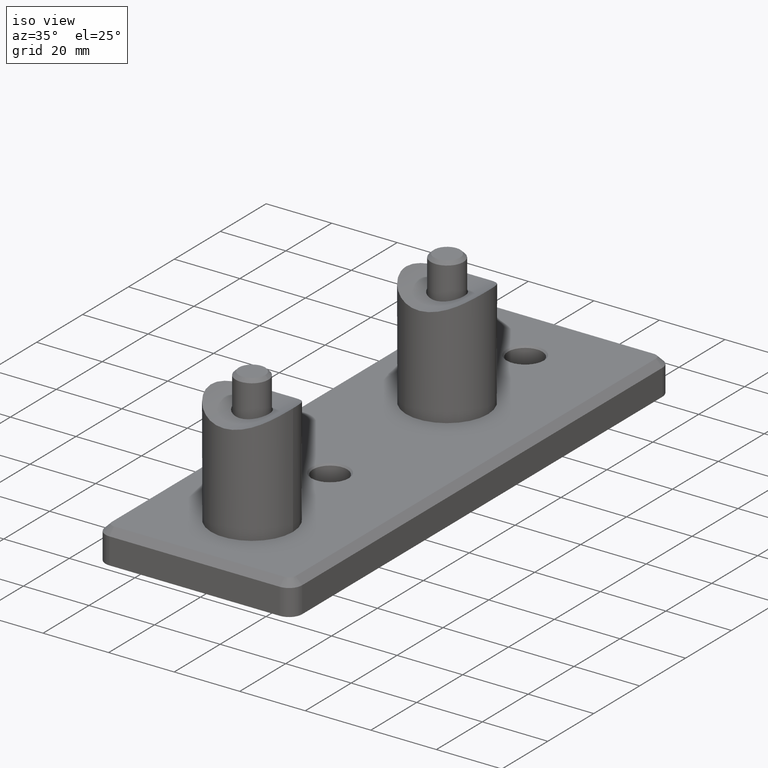
[diagram: clean part render]
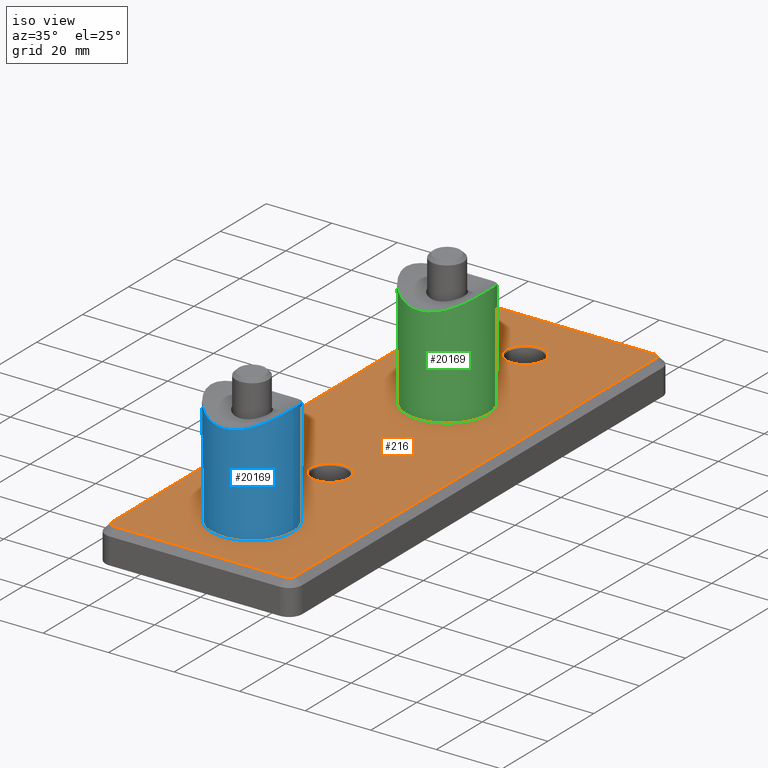
[diagram: same view with three faces highlighted in distinct colors, each labeled with its STEP entity id]
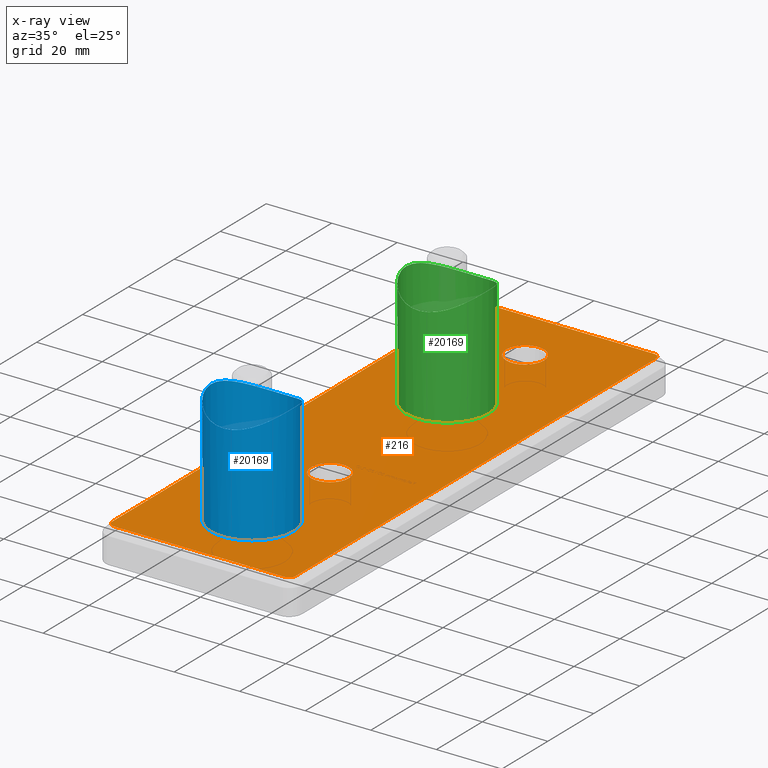
[diagram: x-ray of the same camera — body ghosted, the three highlighted faces saturated]
A machine part, iso view with three faces highlighted in distinct colors.
The next image is the same camera in x-ray (body ghosted, the three faces saturated) — at least one of them is partly hidden behind the body in this view.
Their STEP definitions:

[orange] entity #216 — the highlighted planar face has unit normal (0, 0, 1).
#35 = AXIS2_PLACEMENT_3D ( 'NONE', #19143, #9764, #6501 ) ;
#55 = FACE_OUTER_BOUND ( 'NONE', #11495, .T. ) ;
#126 = CARTESIAN_POINT ( 'NONE',  ( -26.00000000000000000, -80.50000000000001421, 10.00000000000000000 ) ) ;
#137 = EDGE_CURVE ( 'NONE', #20307, #6017, #17592, .T. ) ;
#216 = ADVANCED_FACE ( 'NONE', ( #3515, #8716, #55, #796, #17351 ), #10995, .T. ) ;
#347 = VERTEX_POINT ( 'NONE', #9034 ) ;
#622 = EDGE_CURVE ( 'NONE', #1535, #20307, #2519, .T. ) ;
#796 = FACE_BOUND ( 'NONE', #17856, .T. ) ;
#1049 = ORIENTED_EDGE ( 'NONE', *, *, #622, .T. ) ;
#1126 = CARTESIAN_POINT ( 'NONE',  ( 0.000000000000000000, -57.50000000000001421, 9.999999999999994671 ) ) ;
#1336 = DIRECTION ( 'NONE',  ( -0.000000000000000000, -0.000000000000000000, -1.000000000000000000 ) ) ;
#1353 = EDGE_CURVE ( 'NONE', #6017, #15902, #6211, .T. ) ;
#1535 = VERTEX_POINT ( 'NONE', #13406 ) ;
#1620 = CARTESIAN_POINT ( 'NONE',  ( -26.00000000000000000, 78.50000000000000000, 10.00000000000000000 ) ) ;
#1710 = VECTOR ( 'NONE', #14452, 1000.000000000000000 ) ;
#2519 = CIRCLE ( 'NONE', #19715, 2.000000000000001776 ) ;
#2588 = CARTESIAN_POINT ( 'NONE',  ( 25.99999999999999645, -80.50000000000001421, 10.00000000000000000 ) ) ;
#3067 = EDGE_CURVE ( 'NONE', #15902, #347, #5433, .T. ) ;
#3133 = DIRECTION ( 'NONE',  ( 1.000000000000000000, 0.000000000000000000, 0.000000000000000000 ) ) ;
#3333 = DIRECTION ( 'NONE',  ( -0.000000000000000000, 0.000000000000000000, 1.000000000000000000 ) ) ;
#3334 = DIRECTION ( 'NONE',  ( 0.000000000000000000, -0.000000000000000000, -1.000000000000000000 ) ) ;
#3367 = CARTESIAN_POINT ( 'NONE',  ( -27.99999999999999645, -78.50000000000000000, 10.00000000000000000 ) ) ;
#3515 = FACE_BOUND ( 'NONE', #13415, .T. ) ;
#4008 = VERTEX_POINT ( 'NONE', #126 ) ;
#4210 = AXIS2_PLACEMENT_3D ( 'NONE', #19553, #17916, #5284 ) ;
#4229 = DIRECTION ( 'NONE',  ( -0.000000000000000000, 0.000000000000000000, 1.000000000000000000 ) ) ;
#4429 = DIRECTION ( 'NONE',  ( 1.000000000000000000, 0.000000000000000000, 0.000000000000000000 ) ) ;
#4503 = VECTOR ( 'NONE', #5786, 1000.000000000000000 ) ;
#4585 = ORIENTED_EDGE ( 'NONE', *, *, #137, .T. ) ;
#4623 = DIRECTION ( 'NONE',  ( 1.000000000000000000, 0.000000000000000000, 0.000000000000000000 ) ) ;
#4638 = EDGE_CURVE ( 'NONE', #10731, #10731, #16887, .T. ) ;
#4655 = CIRCLE ( 'NONE', #9362, 2.000000000000001776 ) ;
#4816 = ORIENTED_EDGE ( 'NONE', *, *, #9185, .T. ) ;
#4958 = ORIENTED_EDGE ( 'NONE', *, *, #4638, .T. ) ;
#5193 = CIRCLE ( 'NONE', #19493, 5.749999999999991118 ) ;
#5284 = DIRECTION ( 'NONE',  ( 1.000000000000000000, 0.000000000000000000, 0.000000000000000000 ) ) ;
#5433 = LINE ( 'NONE', #3367, #7910 ) ;
#5624 = LINE ( 'NONE', #2588, #10852 ) ;
#5786 = DIRECTION ( 'NONE',  ( -1.000000000000000000, 0.000000000000000000, -0.000000000000000000 ) ) ;
#6017 = VERTEX_POINT ( 'NONE', #10477 ) ;
#6211 = CIRCLE ( 'NONE', #6898, 2.000000000000001776 ) ;
#6277 = CARTESIAN_POINT ( 'NONE',  ( -5.250000000000009770, 27.50000000000000355, 9.999999999999994671 ) ) ;
#6501 = DIRECTION ( 'NONE',  ( 1.000000000000000000, 0.000000000000000000, 0.000000000000000000 ) ) ;
#6898 = AXIS2_PLACEMENT_3D ( 'NONE', #1620, #3333, #14259 ) ;
#7164 = DIRECTION ( 'NONE',  ( -1.000000000000000000, 0.000000000000000000, 0.000000000000000000 ) ) ;
#7167 = EDGE_LOOP ( 'NONE', ( #4958 ) ) ;
#7197 = EDGE_CURVE ( 'NONE', #19025, #19025, #11683, .T. ) ;
#7474 = CARTESIAN_POINT ( 'NONE',  ( -26.00000000000000000, -78.50000000000000000, 10.00000000000000000 ) ) ;
#7535 = EDGE_CURVE ( 'NONE', #11058, #11058, #19088, .T. ) ;
#7593 = AXIS2_PLACEMENT_3D ( 'NONE', #13328, #16361, #7164 ) ;
#7910 = VECTOR ( 'NONE', #16403, 1000.000000000000000 ) ;
#8598 = CIRCLE ( 'NONE', #4210, 2.000000000000001776 ) ;
#8716 = FACE_BOUND ( 'NONE', #7167, .T. ) ;
#8838 = CARTESIAN_POINT ( 'NONE',  ( 26.00000000000000000, 80.50000000000000000, 10.00000000000000000 ) ) ;
#8996 = ORIENTED_EDGE ( 'NONE', *, *, #12806, .T. ) ;
#9034 = CARTESIAN_POINT ( 'NONE',  ( -28.00000000000000000, -78.50000000000000000, 10.00000000000000000 ) ) ;
#9185 = EDGE_CURVE ( 'NONE', #18048, #18048, #5193, .T. ) ;
#9294 = ORIENTED_EDGE ( 'NONE', *, *, #3067, .T. ) ;
#9362 = AXIS2_PLACEMENT_3D ( 'NONE', #7474, #4229, #4429 ) ;
#9472 = DIRECTION ( 'NONE',  ( -0.000000000000000000, 0.000000000000000000, 1.000000000000000000 ) ) ;
#9764 = DIRECTION ( 'NONE',  ( 0.000000000000000000, -0.000000000000000000, -1.000000000000000000 ) ) ;
#10477 = CARTESIAN_POINT ( 'NONE',  ( -25.99999999999999645, 80.50000000000001421, 10.00000000000000000 ) ) ;
#10543 = CARTESIAN_POINT ( 'NONE',  ( -28.00000000000000000, 78.50000000000000000, 10.00000000000000000 ) ) ;
#10731 = VERTEX_POINT ( 'NONE', #17254 ) ;
#10852 = VECTOR ( 'NONE', #15719, 1000.000000000000000 ) ;
#10995 = PLANE ( 'NONE',  #13236 ) ;
#11058 = VERTEX_POINT ( 'NONE', #6277 ) ;
#11114 = LINE ( 'NONE', #11288, #1710 ) ;
#11288 = CARTESIAN_POINT ( 'NONE',  ( 27.99999999999999645, 78.50000000000000000, 10.00000000000000000 ) ) ;
#11495 = EDGE_LOOP ( 'NONE', ( #17967, #9294, #13330, #13407, #17423, #8996, #1049, #4585 ) ) ;
#11683 = CIRCLE ( 'NONE', #20280, 5.250000000000009770 ) ;
#11714 = EDGE_LOOP ( 'NONE', ( #14261 ) ) ;
#12757 = CARTESIAN_POINT ( 'NONE',  ( 26.00000000000000000, 78.50000000000000000, 10.00000000000000000 ) ) ;
#12806 = EDGE_CURVE ( 'NONE', #19204, #1535, #11114, .T. ) ;
#13236 = AXIS2_PLACEMENT_3D ( 'NONE', #20350, #9472, #4623 ) ;
#13328 = CARTESIAN_POINT ( 'NONE',  ( 0.000000000000000000, 27.50000000000000355, 9.999999999999994671 ) ) ;
#13330 = ORIENTED_EDGE ( 'NONE', *, *, #13811, .T. ) ;
#13406 = CARTESIAN_POINT ( 'NONE',  ( 27.99999999999999645, 78.50000000000000000, 10.00000000000000000 ) ) ;
#13407 = ORIENTED_EDGE ( 'NONE', *, *, #13476, .T. ) ;
#13415 = EDGE_LOOP ( 'NONE', ( #4816 ) ) ;
#13476 = EDGE_CURVE ( 'NONE', #4008, #18041, #5624, .T. ) ;
#13676 = CARTESIAN_POINT ( 'NONE',  ( -25.99999999999999645, 80.50000000000001421, 10.00000000000000000 ) ) ;
#13691 = CARTESIAN_POINT ( 'NONE',  ( 25.99999999999999645, -80.50000000000000000, 10.00000000000000000 ) ) ;
#13811 = EDGE_CURVE ( 'NONE', #347, #4008, #4655, .T. ) ;
#14093 = CARTESIAN_POINT ( 'NONE',  ( 5.749999999999994671, 61.50000000000000000, 10.00000000000000000 ) ) ;
#14194 = CARTESIAN_POINT ( 'NONE',  ( 3.469446951953614189E-15, 61.50000000000000000, 10.00000000000000000 ) ) ;
#14259 = DIRECTION ( 'NONE',  ( 1.000000000000000000, 0.000000000000000000, 0.000000000000000000 ) ) ;
#14261 = ORIENTED_EDGE ( 'NONE', *, *, #7535, .T. ) ;
#14452 = DIRECTION ( 'NONE',  ( 0.000000000000000000, 1.000000000000000000, 0.000000000000000000 ) ) ;
#14750 = EDGE_CURVE ( 'NONE', #18041, #19204, #8598, .T. ) ;
#15409 = DIRECTION ( 'NONE',  ( -1.000000000000000000, 0.000000000000000000, 0.000000000000000000 ) ) ;
#15658 = DIRECTION ( 'NONE',  ( -0.000000000000000000, 0.000000000000000000, 1.000000000000000000 ) ) ;
#15719 = DIRECTION ( 'NONE',  ( 1.000000000000000000, 0.000000000000000000, 0.000000000000000000 ) ) ;
#15902 = VERTEX_POINT ( 'NONE', #10543 ) ;
#16361 = DIRECTION ( 'NONE',  ( -0.000000000000000000, -0.000000000000000000, -1.000000000000000000 ) ) ;
#16403 = DIRECTION ( 'NONE',  ( 0.000000000000000000, -1.000000000000000000, 0.000000000000000000 ) ) ;
#16887 = CIRCLE ( 'NONE', #35, 5.749999999999991118 ) ;
#17234 = DIRECTION ( 'NONE',  ( 1.000000000000000000, 0.000000000000000000, 0.000000000000000000 ) ) ;
#17254 = CARTESIAN_POINT ( 'NONE',  ( 5.749999999999994671, -23.50000000000000711, 10.00000000000000000 ) ) ;
#17351 = FACE_BOUND ( 'NONE', #11714, .T. ) ;
#17423 = ORIENTED_EDGE ( 'NONE', *, *, #14750, .T. ) ;
#17592 = LINE ( 'NONE', #13676, #4503 ) ;
#17856 = EDGE_LOOP ( 'NONE', ( #18770 ) ) ;
#17916 = DIRECTION ( 'NONE',  ( -0.000000000000000000, 0.000000000000000000, 1.000000000000000000 ) ) ;
#17967 = ORIENTED_EDGE ( 'NONE', *, *, #1353, .T. ) ;
#18041 = VERTEX_POINT ( 'NONE', #13691 ) ;
#18048 = VERTEX_POINT ( 'NONE', #14093 ) ;
#18770 = ORIENTED_EDGE ( 'NONE', *, *, #7197, .T. ) ;
#19012 = CARTESIAN_POINT ( 'NONE',  ( 27.99999999999999645, -78.50000000000000000, 10.00000000000000000 ) ) ;
#19025 = VERTEX_POINT ( 'NONE', #19065 ) ;
#19065 = CARTESIAN_POINT ( 'NONE',  ( -5.250000000000009770, -57.50000000000001421, 9.999999999999994671 ) ) ;
#19088 = CIRCLE ( 'NONE', #7593, 5.250000000000009770 ) ;
#19143 = CARTESIAN_POINT ( 'NONE',  ( 3.469446951953614189E-15, -23.50000000000000711, 10.00000000000000000 ) ) ;
#19204 = VERTEX_POINT ( 'NONE', #19012 ) ;
#19493 = AXIS2_PLACEMENT_3D ( 'NONE', #14194, #3334, #3133 ) ;
#19553 = CARTESIAN_POINT ( 'NONE',  ( 26.00000000000000000, -78.50000000000000000, 10.00000000000000000 ) ) ;
#19715 = AXIS2_PLACEMENT_3D ( 'NONE', #12757, #15658, #17234 ) ;
#20280 = AXIS2_PLACEMENT_3D ( 'NONE', #1126, #1336, #15409 ) ;
#20307 = VERTEX_POINT ( 'NONE', #8838 ) ;
#20350 = CARTESIAN_POINT ( 'NONE',  ( 0.000000000000000000, 0.000000000000000000, 10.00000000000000000 ) ) ;

[blue] entity #20169 — the highlighted cylindrical surface (bore or boss wall) has radius 12.5 mm, axis along (-0, -0, -1).
#404 = AXIS2_PLACEMENT_3D ( 'NONE', #11359, #5044, #19269 ) ;
#740 = CARTESIAN_POINT ( 'NONE',  ( 8.269659684127949717, -32.18686579228749167, -9.382022416828240452 ) ) ;
#807 = CARTESIAN_POINT ( 'NONE',  ( 11.21002534183693555, -30.73575645111013799, -5.591050753373576043 ) ) ;
#878 = CARTESIAN_POINT ( 'NONE',  ( -12.05665895762297346, -30.25858835878696951, -3.325599062000990980 ) ) ;
#946 = CARTESIAN_POINT ( 'NONE',  ( 0.8860142871117567820, -34.07525389651548409, -12.49732296905759377 ) ) ;
#1019 = CARTESIAN_POINT ( 'NONE',  ( 7.653665026426097917, -32.44658459250861426, -9.890956858889875747 ) ) ;
#1304 = CARTESIAN_POINT ( 'NONE',  ( -12.41045875454616976, -30.05310759681733757, -1.707735325147986760 ) ) ;
#1370 = CARTESIAN_POINT ( 'NONE',  ( -2.898264919438362508, -33.83829864369953100, 12.16641120991130087 ) ) ;
#2083 = FACE_OUTER_BOUND ( 'NONE', #8504, .T. ) ;
#2332 = CARTESIAN_POINT ( 'NONE',  ( -2.864745459774443059, -33.84389493896309631, -12.17438402735407088 ) ) ;
#2395 = CARTESIAN_POINT ( 'NONE',  ( -1.639093187310743049, -34.00394095270910810, -12.39911709150978325 ) ) ;
#2460 = CARTESIAN_POINT ( 'NONE',  ( 9.099289853513171877, -31.81123235145866346, 8.579684125939676775 ) ) ;
#2528 = CARTESIAN_POINT ( 'NONE',  ( -4.448026940979963761, -33.51259568297189873, -11.68891677482751312 ) ) ;
#2556 = FACE_OUTER_BOUND ( 'NONE', #12196, .T. ) ;
#2726 = ORIENTED_EDGE ( 'NONE', *, *, #10707, .T. ) ;
#2817 = CARTESIAN_POINT ( 'NONE',  ( -9.904348073823665999, -31.42288580060561998, 7.669188264874224892 ) ) ;
#2877 = CARTESIAN_POINT ( 'NONE',  ( -7.305735025602163368, -32.58632110779850422, 10.15069297172133211 ) ) ;
#3712 = CARTESIAN_POINT ( 'NONE',  ( 4.095605162789610176, -33.60895770266269977, 11.83790129368927246 ) ) ;
#3844 = CARTESIAN_POINT ( 'NONE',  ( 6.332330704725867676, -32.95420088827196281, -10.80722643487080781 ) ) ;
#3908 = CARTESIAN_POINT ( 'NONE',  ( -3.268895922307726742, -33.77228731781828941, -12.07213895231154943 ) ) ;
#3972 = CARTESIAN_POINT ( 'NONE',  ( -9.375404808503668974, -31.68501290080187616, -8.305943582281884119 ) ) ;
#4040 = CARTESIAN_POINT ( 'NONE',  ( 12.49722262022036290, -30.00163760050955375, 0.8811473890249003071 ) ) ;
#4112 = CARTESIAN_POINT ( 'NONE',  ( -8.242993244431771060, -32.20306751640406873, -9.430799355707637943 ) ) ;
#4188 = CARTESIAN_POINT ( 'NONE',  ( -0.4238836094079244110, -34.07720817156295112, 12.50000000000000711 ) ) ;
#4390 = CARTESIAN_POINT ( 'NONE',  ( -6.308790992748084747, -32.96234789396000764, 10.82083566512647366 ) ) ;
#5044 = DIRECTION ( 'NONE',  ( 1.800782001297308257E-31, 1.000000000000000000, -4.391120273202881980E-31 ) ) ;
#5233 = CARTESIAN_POINT ( 'NONE',  ( 1.675843343643794725, -34.01409499314947027, 12.41472012078710563 ) ) ;
#5434 = CARTESIAN_POINT ( 'NONE',  ( 7.330211040147356805, -32.57670310710363282, -10.13307184169972608 ) ) ;
#5501 = CARTESIAN_POINT ( 'NONE',  ( 12.39903987740902913, -30.05939714936138074, -1.640003249381550177 ) ) ;
#5566 = CARTESIAN_POINT ( 'NONE',  ( 8.563940322642492831, -32.05662793716614090, -9.114120901477777537 ) ) ;
#5629 = CARTESIAN_POINT ( 'NONE',  ( 7.639919466523481972, -32.46037398122826545, 9.926357879968650266 ) ) ;
#5697 = CARTESIAN_POINT ( 'NONE',  ( 11.68640455965288005, -30.46971537827393561, -4.454949791072950305 ) ) ;
#5910 = CARTESIAN_POINT ( 'NONE',  ( -8.546432821536400937, -32.06447009748780630, 9.130588656030962369 ) ) ;
#6047 = CARTESIAN_POINT ( 'NONE',  ( -8.250334600383412820, -32.19529840873376969, 9.399126279219046864 ) ) ;
#7024 = CARTESIAN_POINT ( 'NONE',  ( 3.342676321175135801, -33.75823474089920495, -12.05185200682198854 ) ) ;
#7092 = CARTESIAN_POINT ( 'NONE',  ( 12.41059106112182597, -30.05303130453836857, 1.707298504454077159 ) ) ;
#7157 = CARTESIAN_POINT ( 'NONE',  ( -10.79649406620359997, -30.96128752440375465, -6.350638802791109150 ) ) ;
#7227 = CARTESIAN_POINT ( 'NONE',  ( 10.14643006982020523, -31.29767131770432087, -7.311902330935399874 ) ) ;
#7295 = CARTESIAN_POINT ( 'NONE',  ( 10.12445695628427167, -31.30886202792436279, 7.342150250603312500 ) ) ;
#7436 = CARTESIAN_POINT ( 'NONE',  ( -12.50203634204621039, -29.99879932898629775, 0.8176763673977880398 ) ) ;
#7860 = CARTESIAN_POINT ( 'NONE',  ( 0.000000000000000000, -34.07720817156294402, 12.50000000000000533 ) ) ;
#8504 = EDGE_LOOP ( 'NONE', ( #2726 ) ) ;
#8623 = CARTESIAN_POINT ( 'NONE',  ( 12.50129113565382610, -29.99923871983471102, -0.3800900245422370594 ) ) ;
#8688 = CARTESIAN_POINT ( 'NONE',  ( 11.82867054258226425, -30.38900606303381124, -4.062648745507969394 ) ) ;
#8758 = CARTESIAN_POINT ( 'NONE',  ( -11.66482277760317388, -30.48188300950837260, -4.511103987323107134 ) ) ;
#8818 = CARTESIAN_POINT ( 'NONE',  ( 9.126169483825954387, -31.79859310426633812, -8.551099590638624903 ) ) ;
#8887 = CARTESIAN_POINT ( 'NONE',  ( 11.66462809805587675, -30.48198691563805340, 4.511375195985465325 ) ) ;
#8902 = B_SPLINE_CURVE_WITH_KNOTS ( 'NONE', 3,
 ( #16351, #19385, #5233, #17871, #3712, #15105, #10281, #5629, #14910, #2460, #18139, #16746, #7295, #19709, #12076, #8887, #16681, #18349, #13521, #7092, #4040, #8623, #10212, #5501, #16610, #15178, #19642, #8688, #5697, #807, #19911, #7227, #10494, #18272, #8818, #5566, #740, #1019, #5434, #3844, #13321, #16477, #19844, #7024, #10415, #11872, #946, #11808, #12006, #2395, #18069, #2332, #3908, #13457, #2528, #14976, #13587, #13388, #16548, #10346, #4112, #3972, #15038, #7157, #18200, #8758, #19772, #878, #11940, #1304, #18484, #7436, #18624, #9243, #12274, #18556, #12137, #2817, #20258, #5910, #6047, #16960, #2877, #4390, #10832, #15445, #13939, #20058, #1370, #9031, #13659, #17024, #4188, #16821 ),
 .UNSPECIFIED., .T., .F.,
 ( 4, 2, 2, 2, 2, 2, 2, 2, 2, 2, 2, 2, 2, 2, 2, 2, 2, 2, 2, 2, 2, 2, 2, 2, 2, 2, 2, 2, 2, 2, 2, 2, 2, 2, 2, 2, 2, 2, 2, 2, 2, 2, 2, 2, 2, 2, 4 ),
 ( 0.000000000000000000, 0.002500575037280133948, 0.005001150074560269630, 0.007501725111840404879, 0.01000230014912054100, 0.01125258766776060688, 0.01250287518640067451, 0.01500345022368080976, 0.01625373774232087565, 0.01750402526096094327, 0.02000460029824107852, 0.02125488781688114615, 0.02250517533552121030, 0.02375546285416127792, 0.02500575037280134208, 0.02750632541008148080, 0.02875661292872154495, 0.03000690044736161258, 0.03125718796600168020, 0.03250747548464174436, 0.03500805052192187961, 0.03625833804056195070, 0.03750862555920201485, 0.04000920059648214316, 0.04125948811512221426, 0.04250977563376228535, 0.04376006315240234257, 0.04501035067104241366, 0.04626063818968247782, 0.04751092570832254891, 0.05001150074560267722, 0.05251207578288281247, 0.05501265082016295466, 0.05626293833880301881, 0.05751322585744308297, 0.06001380089472322515, 0.06251437593200337428, 0.06501495096928351647, 0.06751552600656365866, 0.07001610104384380084, 0.07126638856248387888, 0.07251667608112394303, 0.07501725111840409910, 0.07626753863704417713, 0.07751782615568424128, 0.07876811367432431932, 0.08001840119296439735 ),
 .UNSPECIFIED. ) ;
#9031 = CARTESIAN_POINT ( 'NONE',  ( -2.086642909512166355, -33.95520910321220498, 12.33156205190912402 ) ) ;
#9243 = CARTESIAN_POINT ( 'NONE',  ( -12.08932393936483152, -30.23994588846752762, 3.285050927320008807 ) ) ;
#10212 = CARTESIAN_POINT ( 'NONE',  ( 12.48106748370102714, -30.01118350309415916, -0.8054532927876221216 ) ) ;
#10281 = CARTESIAN_POINT ( 'NONE',  ( 6.300445486796651728, -32.96539478901286913, 10.82614136634489199 ) ) ;
#10346 = CARTESIAN_POINT ( 'NONE',  ( -7.627862284773214263, -32.46526074808203077, -9.935483140635563259 ) ) ;
#10415 = CARTESIAN_POINT ( 'NONE',  ( 2.937046760329389272, -33.83180727272285537, -12.15715828628344397 ) ) ;
#10494 = CARTESIAN_POINT ( 'NONE',  ( 9.903714983647297743, -31.42060933863836425, -7.637216114839295855 ) ) ;
#10663 = VERTEX_POINT ( 'NONE', #7860 ) ;
#10707 = EDGE_CURVE ( 'NONE', #10663, #10663, #8902, .T. ) ;
#10832 = CARTESIAN_POINT ( 'NONE',  ( -5.604583299272207775, -33.19773298843660569, 11.20267554811144350 ) ) ;
#11359 = CARTESIAN_POINT ( 'NONE',  ( 0.000000000000000000, -30.00000000000025935, 3.851859888774471706E-31 ) ) ;
#11691 = DIRECTION ( 'NONE',  ( 8.011868568650901149E-31, -4.391120273202915261E-31, 1.000000000000000000 ) ) ;
#11808 = CARTESIAN_POINT ( 'NONE',  ( -0.3850937661070816254, -34.07812001687192094, -12.50124907634356219 ) ) ;
#11872 = CARTESIAN_POINT ( 'NONE',  ( 1.715989125616549815, -34.01029033295746018, -12.40952643742747696 ) ) ;
#11882 = DIRECTION ( 'NONE',  ( 1.800782001297308257E-31, 1.000000000000000000, -4.391120273202881980E-31 ) ) ;
#11940 = CARTESIAN_POINT ( 'NONE',  ( -12.16013246386164681, -30.19870921843090983, -2.924489711231786693 ) ) ;
#12006 = CARTESIAN_POINT ( 'NONE',  ( -0.8070878136106502954, -34.06322051784221117, -12.48091905216837993 ) ) ;
#12076 = CARTESIAN_POINT ( 'NONE',  ( 11.18673559650116189, -30.74851782150145851, 5.636591700097153712 ) ) ;
#12137 = CARTESIAN_POINT ( 'NONE',  ( -10.81529640315652863, -30.95132667119734293, 6.319962272150707605 ) ) ;
#12196 = EDGE_LOOP ( 'NONE', ( #13124 ) ) ;
#12274 = CARTESIAN_POINT ( 'NONE',  ( -11.83994799044258883, -30.38402953964717668, 4.091362508897636197 ) ) ;
#12740 = CIRCLE ( 'NONE', #15471, 12.50000000000000533 ) ;
#13124 = ORIENTED_EDGE ( 'NONE', *, *, #18124, .F. ) ;
#13321 = CARTESIAN_POINT ( 'NONE',  ( 5.629766700528002765, -33.18966330151086197, -11.18969624354873638 ) ) ;
#13388 = CARTESIAN_POINT ( 'NONE',  ( -6.276656481027607981, -32.96615234693923213, -10.81743948219726015 ) ) ;
#13457 = CARTESIAN_POINT ( 'NONE',  ( -4.062392419382830688, -33.60617946690209834, -11.82874411193929731 ) ) ;
#13521 = CARTESIAN_POINT ( 'NONE',  ( 12.15987681657327002, -30.19885758287590960, 2.925629073069762942 ) ) ;
#13587 = CARTESIAN_POINT ( 'NONE',  ( -5.564610046012392175, -33.19884257559015595, -11.20038073315563842 ) ) ;
#13659 = CARTESIAN_POINT ( 'NONE',  ( -1.676188553741066789, -34.00034742548066902, 12.39413791456127534 ) ) ;
#13939 = CARTESIAN_POINT ( 'NONE',  ( -4.092729325265530349, -33.59914468516754482, 11.81828963120915610 ) ) ;
#14910 = CARTESIAN_POINT ( 'NONE',  ( 8.253902182121779063, -32.19826740542859511, 9.421004241829065151 ) ) ;
#14976 = CARTESIAN_POINT ( 'NONE',  ( -5.199138297438138601, -33.30893052827112655, -11.37473867834507857 ) ) ;
#15038 = CARTESIAN_POINT ( 'NONE',  ( -9.895106780779487465, -31.42743474530143644, -7.679958276062280653 ) ) ;
#15105 = CARTESIAN_POINT ( 'NONE',  ( 5.593301396689160043, -33.20122759820976910, 11.20825000499159430 ) ) ;
#15178 = CARTESIAN_POINT ( 'NONE',  ( 12.17402486957018226, -30.19065756805757772, -2.866271616448685666 ) ) ;
#15340 = VERTEX_POINT ( 'NONE', #18853 ) ;
#15445 = CARTESIAN_POINT ( 'NONE',  ( -4.480559060405732374, -33.50436564027570085, 11.67646838110307961 ) ) ;
#15471 = AXIS2_PLACEMENT_3D ( 'NONE', #18011, #11882, #11691 ) ;
#16351 = CARTESIAN_POINT ( 'NONE',  ( -8.131516293641283255E-16, -34.07720817156294402, 12.50000000000000711 ) ) ;
#16477 = CARTESIAN_POINT ( 'NONE',  ( 4.513568984186816735, -33.49592437607536510, -11.66366532468685513 ) ) ;
#16548 = CARTESIAN_POINT ( 'NONE',  ( -6.624734481196393077, -32.84295367176925851, -10.60777639856616972 ) ) ;
#16610 = CARTESIAN_POINT ( 'NONE',  ( 12.33739488078823676, -30.09557154665869305, -2.052092117735665688 ) ) ;
#16681 = CARTESIAN_POINT ( 'NONE',  ( 11.80702830373932599, -30.40130995932323899, 4.125290108934023259 ) ) ;
#16746 = CARTESIAN_POINT ( 'NONE',  ( 9.880977930886484017, -31.43200044329510945, 7.666656435487459120 ) ) ;
#16821 = CARTESIAN_POINT ( 'NONE',  ( -8.131516293641283255E-16, -34.07720817156294402, 12.50000000000000711 ) ) ;
#16960 = CARTESIAN_POINT ( 'NONE',  ( -7.629375070976070816, -32.45652045301021360, 9.909804834473719737 ) ) ;
#17024 = CARTESIAN_POINT ( 'NONE',  ( -0.8455510957059375610, -34.06134785719933689, 12.47835349945690275 ) ) ;
#17871 = CARTESIAN_POINT ( 'NONE',  ( 3.296557528382306312, -33.78121211076992836, 12.08579476294287680 ) ) ;
#18011 = CARTESIAN_POINT ( 'NONE',  ( 0.000000000000000000, 0.000000000000000000, 0.000000000000000000 ) ) ;
#18069 = CARTESIAN_POINT ( 'NONE',  ( -2.050549075641086461, -33.95957170334609287, -12.33765137630253328 ) ) ;
#18124 = EDGE_CURVE ( 'NONE', #15340, #15340, #12740, .T. ) ;
#18139 = CARTESIAN_POINT ( 'NONE',  ( 9.368375596618179202, -31.68317282644206401, 8.285220845044271698 ) ) ;
#18200 = CARTESIAN_POINT ( 'NONE',  ( -11.18372281719153349, -30.75018873321646851, -5.643309527002583259 ) ) ;
#18272 = CARTESIAN_POINT ( 'NONE',  ( 9.394115780166851337, -31.67078763112499828, -8.255981417790460242 ) ) ;
#18349 = CARTESIAN_POINT ( 'NONE',  ( 12.05574095154473468, -30.25911940883100471, 3.329120898588340260 ) ) ;
#18484 = CARTESIAN_POINT ( 'NONE',  ( -12.49788895021744395, -30.00124472034465484, -0.8787941327055002194 ) ) ;
#18556 = CARTESIAN_POINT ( 'NONE',  ( -11.20333342658422460, -30.73942968397226139, 5.604367558286947215 ) ) ;
#18624 = CARTESIAN_POINT ( 'NONE',  ( -12.41822876017533694, -30.04853384307565278, 1.652545722798548056 ) ) ;
#18853 = CARTESIAN_POINT ( 'NONE',  ( 1.001483571081363064E-29, -5.488900341503646704E-30, 12.50000000000000533 ) ) ;
#19269 = DIRECTION ( 'NONE',  ( 8.011868568650901149E-31, 0.000000000000000000, 1.000000000000000000 ) ) ;
#19385 = CARTESIAN_POINT ( 'NONE',  ( 0.8477672188158403843, -34.07720817156292981, 12.50000000000000178 ) ) ;
#19642 = CARTESIAN_POINT ( 'NONE',  ( 12.07229783247376886, -30.24957287319801935, -3.268361466909701196 ) ) ;
#19709 = CARTESIAN_POINT ( 'NONE',  ( 10.80110207316823079, -30.95883475061160439, 6.342979572200223792 ) ) ;
#19772 = CARTESIAN_POINT ( 'NONE',  ( -11.80920847800569007, -30.40006968321036851, -4.118886920590389522 ) ) ;
#19844 = CARTESIAN_POINT ( 'NONE',  ( 4.131024785211189432, -33.59014321064879027, -11.80488271887759844 ) ) ;
#19911 = CARTESIAN_POINT ( 'NONE',  ( 10.82435123611150019, -30.94642858781981332, -6.303907974649649582 ) ) ;
#20058 = CARTESIAN_POINT ( 'NONE',  ( -3.299432798071065154, -33.76652842166070201, 12.06383630310222443 ) ) ;
#20169 = ADVANCED_FACE ( 'NONE', ( #2556, #2083 ), #20300, .T. ) ;
#20258 = CARTESIAN_POINT ( 'NONE',  ( -9.393693742237655186, -31.67618262658065831, 8.285238113159326900 ) ) ;
#20300 = CYLINDRICAL_SURFACE ( 'NONE', #404, 12.50000000000000533 ) ;

[green] entity #20169 — the highlighted cylindrical surface (bore or boss wall) has radius 12.5 mm, axis along (0, 0, -1).
#404 = AXIS2_PLACEMENT_3D ( 'NONE', #11359, #5044, #19269 ) ;
#740 = CARTESIAN_POINT ( 'NONE',  ( 8.269659684127949717, -32.18686579228749167, -9.382022416828240452 ) ) ;
#807 = CARTESIAN_POINT ( 'NONE',  ( 11.21002534183693555, -30.73575645111013799, -5.591050753373576043 ) ) ;
#878 = CARTESIAN_POINT ( 'NONE',  ( -12.05665895762297346, -30.25858835878696951, -3.325599062000990980 ) ) ;
#946 = CARTESIAN_POINT ( 'NONE',  ( 0.8860142871117567820, -34.07525389651548409, -12.49732296905759377 ) ) ;
#1019 = CARTESIAN_POINT ( 'NONE',  ( 7.653665026426097917, -32.44658459250861426, -9.890956858889875747 ) ) ;
#1304 = CARTESIAN_POINT ( 'NONE',  ( -12.41045875454616976, -30.05310759681733757, -1.707735325147986760 ) ) ;
#1370 = CARTESIAN_POINT ( 'NONE',  ( -2.898264919438362508, -33.83829864369953100, 12.16641120991130087 ) ) ;
#2083 = FACE_OUTER_BOUND ( 'NONE', #8504, .T. ) ;
#2332 = CARTESIAN_POINT ( 'NONE',  ( -2.864745459774443059, -33.84389493896309631, -12.17438402735407088 ) ) ;
#2395 = CARTESIAN_POINT ( 'NONE',  ( -1.639093187310743049, -34.00394095270910810, -12.39911709150978325 ) ) ;
#2460 = CARTESIAN_POINT ( 'NONE',  ( 9.099289853513171877, -31.81123235145866346, 8.579684125939676775 ) ) ;
#2528 = CARTESIAN_POINT ( 'NONE',  ( -4.448026940979963761, -33.51259568297189873, -11.68891677482751312 ) ) ;
#2556 = FACE_OUTER_BOUND ( 'NONE', #12196, .T. ) ;
#2726 = ORIENTED_EDGE ( 'NONE', *, *, #10707, .T. ) ;
#2817 = CARTESIAN_POINT ( 'NONE',  ( -9.904348073823665999, -31.42288580060561998, 7.669188264874224892 ) ) ;
#2877 = CARTESIAN_POINT ( 'NONE',  ( -7.305735025602163368, -32.58632110779850422, 10.15069297172133211 ) ) ;
#3712 = CARTESIAN_POINT ( 'NONE',  ( 4.095605162789610176, -33.60895770266269977, 11.83790129368927246 ) ) ;
#3844 = CARTESIAN_POINT ( 'NONE',  ( 6.332330704725867676, -32.95420088827196281, -10.80722643487080781 ) ) ;
#3908 = CARTESIAN_POINT ( 'NONE',  ( -3.268895922307726742, -33.77228731781828941, -12.07213895231154943 ) ) ;
#3972 = CARTESIAN_POINT ( 'NONE',  ( -9.375404808503668974, -31.68501290080187616, -8.305943582281884119 ) ) ;
#4040 = CARTESIAN_POINT ( 'NONE',  ( 12.49722262022036290, -30.00163760050955375, 0.8811473890249003071 ) ) ;
#4112 = CARTESIAN_POINT ( 'NONE',  ( -8.242993244431771060, -32.20306751640406873, -9.430799355707637943 ) ) ;
#4188 = CARTESIAN_POINT ( 'NONE',  ( -0.4238836094079244110, -34.07720817156295112, 12.50000000000000711 ) ) ;
#4390 = CARTESIAN_POINT ( 'NONE',  ( -6.308790992748084747, -32.96234789396000764, 10.82083566512647366 ) ) ;
#5044 = DIRECTION ( 'NONE',  ( 1.800782001297308257E-31, 1.000000000000000000, -4.391120273202881980E-31 ) ) ;
#5233 = CARTESIAN_POINT ( 'NONE',  ( 1.675843343643794725, -34.01409499314947027, 12.41472012078710563 ) ) ;
#5434 = CARTESIAN_POINT ( 'NONE',  ( 7.330211040147356805, -32.57670310710363282, -10.13307184169972608 ) ) ;
#5501 = CARTESIAN_POINT ( 'NONE',  ( 12.39903987740902913, -30.05939714936138074, -1.640003249381550177 ) ) ;
#5566 = CARTESIAN_POINT ( 'NONE',  ( 8.563940322642492831, -32.05662793716614090, -9.114120901477777537 ) ) ;
#5629 = CARTESIAN_POINT ( 'NONE',  ( 7.639919466523481972, -32.46037398122826545, 9.926357879968650266 ) ) ;
#5697 = CARTESIAN_POINT ( 'NONE',  ( 11.68640455965288005, -30.46971537827393561, -4.454949791072950305 ) ) ;
#5910 = CARTESIAN_POINT ( 'NONE',  ( -8.546432821536400937, -32.06447009748780630, 9.130588656030962369 ) ) ;
#6047 = CARTESIAN_POINT ( 'NONE',  ( -8.250334600383412820, -32.19529840873376969, 9.399126279219046864 ) ) ;
#7024 = CARTESIAN_POINT ( 'NONE',  ( 3.342676321175135801, -33.75823474089920495, -12.05185200682198854 ) ) ;
#7092 = CARTESIAN_POINT ( 'NONE',  ( 12.41059106112182597, -30.05303130453836857, 1.707298504454077159 ) ) ;
#7157 = CARTESIAN_POINT ( 'NONE',  ( -10.79649406620359997, -30.96128752440375465, -6.350638802791109150 ) ) ;
#7227 = CARTESIAN_POINT ( 'NONE',  ( 10.14643006982020523, -31.29767131770432087, -7.311902330935399874 ) ) ;
#7295 = CARTESIAN_POINT ( 'NONE',  ( 10.12445695628427167, -31.30886202792436279, 7.342150250603312500 ) ) ;
#7436 = CARTESIAN_POINT ( 'NONE',  ( -12.50203634204621039, -29.99879932898629775, 0.8176763673977880398 ) ) ;
#7860 = CARTESIAN_POINT ( 'NONE',  ( 0.000000000000000000, -34.07720817156294402, 12.50000000000000533 ) ) ;
#8504 = EDGE_LOOP ( 'NONE', ( #2726 ) ) ;
#8623 = CARTESIAN_POINT ( 'NONE',  ( 12.50129113565382610, -29.99923871983471102, -0.3800900245422370594 ) ) ;
#8688 = CARTESIAN_POINT ( 'NONE',  ( 11.82867054258226425, -30.38900606303381124, -4.062648745507969394 ) ) ;
#8758 = CARTESIAN_POINT ( 'NONE',  ( -11.66482277760317388, -30.48188300950837260, -4.511103987323107134 ) ) ;
#8818 = CARTESIAN_POINT ( 'NONE',  ( 9.126169483825954387, -31.79859310426633812, -8.551099590638624903 ) ) ;
#8887 = CARTESIAN_POINT ( 'NONE',  ( 11.66462809805587675, -30.48198691563805340, 4.511375195985465325 ) ) ;
#8902 = B_SPLINE_CURVE_WITH_KNOTS ( 'NONE', 3,
 ( #16351, #19385, #5233, #17871, #3712, #15105, #10281, #5629, #14910, #2460, #18139, #16746, #7295, #19709, #12076, #8887, #16681, #18349, #13521, #7092, #4040, #8623, #10212, #5501, #16610, #15178, #19642, #8688, #5697, #807, #19911, #7227, #10494, #18272, #8818, #5566, #740, #1019, #5434, #3844, #13321, #16477, #19844, #7024, #10415, #11872, #946, #11808, #12006, #2395, #18069, #2332, #3908, #13457, #2528, #14976, #13587, #13388, #16548, #10346, #4112, #3972, #15038, #7157, #18200, #8758, #19772, #878, #11940, #1304, #18484, #7436, #18624, #9243, #12274, #18556, #12137, #2817, #20258, #5910, #6047, #16960, #2877, #4390, #10832, #15445, #13939, #20058, #1370, #9031, #13659, #17024, #4188, #16821 ),
 .UNSPECIFIED., .T., .F.,
 ( 4, 2, 2, 2, 2, 2, 2, 2, 2, 2, 2, 2, 2, 2, 2, 2, 2, 2, 2, 2, 2, 2, 2, 2, 2, 2, 2, 2, 2, 2, 2, 2, 2, 2, 2, 2, 2, 2, 2, 2, 2, 2, 2, 2, 2, 2, 4 ),
 ( 0.000000000000000000, 0.002500575037280133948, 0.005001150074560269630, 0.007501725111840404879, 0.01000230014912054100, 0.01125258766776060688, 0.01250287518640067451, 0.01500345022368080976, 0.01625373774232087565, 0.01750402526096094327, 0.02000460029824107852, 0.02125488781688114615, 0.02250517533552121030, 0.02375546285416127792, 0.02500575037280134208, 0.02750632541008148080, 0.02875661292872154495, 0.03000690044736161258, 0.03125718796600168020, 0.03250747548464174436, 0.03500805052192187961, 0.03625833804056195070, 0.03750862555920201485, 0.04000920059648214316, 0.04125948811512221426, 0.04250977563376228535, 0.04376006315240234257, 0.04501035067104241366, 0.04626063818968247782, 0.04751092570832254891, 0.05001150074560267722, 0.05251207578288281247, 0.05501265082016295466, 0.05626293833880301881, 0.05751322585744308297, 0.06001380089472322515, 0.06251437593200337428, 0.06501495096928351647, 0.06751552600656365866, 0.07001610104384380084, 0.07126638856248387888, 0.07251667608112394303, 0.07501725111840409910, 0.07626753863704417713, 0.07751782615568424128, 0.07876811367432431932, 0.08001840119296439735 ),
 .UNSPECIFIED. ) ;
#9031 = CARTESIAN_POINT ( 'NONE',  ( -2.086642909512166355, -33.95520910321220498, 12.33156205190912402 ) ) ;
#9243 = CARTESIAN_POINT ( 'NONE',  ( -12.08932393936483152, -30.23994588846752762, 3.285050927320008807 ) ) ;
#10212 = CARTESIAN_POINT ( 'NONE',  ( 12.48106748370102714, -30.01118350309415916, -0.8054532927876221216 ) ) ;
#10281 = CARTESIAN_POINT ( 'NONE',  ( 6.300445486796651728, -32.96539478901286913, 10.82614136634489199 ) ) ;
#10346 = CARTESIAN_POINT ( 'NONE',  ( -7.627862284773214263, -32.46526074808203077, -9.935483140635563259 ) ) ;
#10415 = CARTESIAN_POINT ( 'NONE',  ( 2.937046760329389272, -33.83180727272285537, -12.15715828628344397 ) ) ;
#10494 = CARTESIAN_POINT ( 'NONE',  ( 9.903714983647297743, -31.42060933863836425, -7.637216114839295855 ) ) ;
#10663 = VERTEX_POINT ( 'NONE', #7860 ) ;
#10707 = EDGE_CURVE ( 'NONE', #10663, #10663, #8902, .T. ) ;
#10832 = CARTESIAN_POINT ( 'NONE',  ( -5.604583299272207775, -33.19773298843660569, 11.20267554811144350 ) ) ;
#11359 = CARTESIAN_POINT ( 'NONE',  ( 0.000000000000000000, -30.00000000000025935, 3.851859888774471706E-31 ) ) ;
#11691 = DIRECTION ( 'NONE',  ( 8.011868568650901149E-31, -4.391120273202915261E-31, 1.000000000000000000 ) ) ;
#11808 = CARTESIAN_POINT ( 'NONE',  ( -0.3850937661070816254, -34.07812001687192094, -12.50124907634356219 ) ) ;
#11872 = CARTESIAN_POINT ( 'NONE',  ( 1.715989125616549815, -34.01029033295746018, -12.40952643742747696 ) ) ;
#11882 = DIRECTION ( 'NONE',  ( 1.800782001297308257E-31, 1.000000000000000000, -4.391120273202881980E-31 ) ) ;
#11940 = CARTESIAN_POINT ( 'NONE',  ( -12.16013246386164681, -30.19870921843090983, -2.924489711231786693 ) ) ;
#12006 = CARTESIAN_POINT ( 'NONE',  ( -0.8070878136106502954, -34.06322051784221117, -12.48091905216837993 ) ) ;
#12076 = CARTESIAN_POINT ( 'NONE',  ( 11.18673559650116189, -30.74851782150145851, 5.636591700097153712 ) ) ;
#12137 = CARTESIAN_POINT ( 'NONE',  ( -10.81529640315652863, -30.95132667119734293, 6.319962272150707605 ) ) ;
#12196 = EDGE_LOOP ( 'NONE', ( #13124 ) ) ;
#12274 = CARTESIAN_POINT ( 'NONE',  ( -11.83994799044258883, -30.38402953964717668, 4.091362508897636197 ) ) ;
#12740 = CIRCLE ( 'NONE', #15471, 12.50000000000000533 ) ;
#13124 = ORIENTED_EDGE ( 'NONE', *, *, #18124, .F. ) ;
#13321 = CARTESIAN_POINT ( 'NONE',  ( 5.629766700528002765, -33.18966330151086197, -11.18969624354873638 ) ) ;
#13388 = CARTESIAN_POINT ( 'NONE',  ( -6.276656481027607981, -32.96615234693923213, -10.81743948219726015 ) ) ;
#13457 = CARTESIAN_POINT ( 'NONE',  ( -4.062392419382830688, -33.60617946690209834, -11.82874411193929731 ) ) ;
#13521 = CARTESIAN_POINT ( 'NONE',  ( 12.15987681657327002, -30.19885758287590960, 2.925629073069762942 ) ) ;
#13587 = CARTESIAN_POINT ( 'NONE',  ( -5.564610046012392175, -33.19884257559015595, -11.20038073315563842 ) ) ;
#13659 = CARTESIAN_POINT ( 'NONE',  ( -1.676188553741066789, -34.00034742548066902, 12.39413791456127534 ) ) ;
#13939 = CARTESIAN_POINT ( 'NONE',  ( -4.092729325265530349, -33.59914468516754482, 11.81828963120915610 ) ) ;
#14910 = CARTESIAN_POINT ( 'NONE',  ( 8.253902182121779063, -32.19826740542859511, 9.421004241829065151 ) ) ;
#14976 = CARTESIAN_POINT ( 'NONE',  ( -5.199138297438138601, -33.30893052827112655, -11.37473867834507857 ) ) ;
#15038 = CARTESIAN_POINT ( 'NONE',  ( -9.895106780779487465, -31.42743474530143644, -7.679958276062280653 ) ) ;
#15105 = CARTESIAN_POINT ( 'NONE',  ( 5.593301396689160043, -33.20122759820976910, 11.20825000499159430 ) ) ;
#15178 = CARTESIAN_POINT ( 'NONE',  ( 12.17402486957018226, -30.19065756805757772, -2.866271616448685666 ) ) ;
#15340 = VERTEX_POINT ( 'NONE', #18853 ) ;
#15445 = CARTESIAN_POINT ( 'NONE',  ( -4.480559060405732374, -33.50436564027570085, 11.67646838110307961 ) ) ;
#15471 = AXIS2_PLACEMENT_3D ( 'NONE', #18011, #11882, #11691 ) ;
#16351 = CARTESIAN_POINT ( 'NONE',  ( -8.131516293641283255E-16, -34.07720817156294402, 12.50000000000000711 ) ) ;
#16477 = CARTESIAN_POINT ( 'NONE',  ( 4.513568984186816735, -33.49592437607536510, -11.66366532468685513 ) ) ;
#16548 = CARTESIAN_POINT ( 'NONE',  ( -6.624734481196393077, -32.84295367176925851, -10.60777639856616972 ) ) ;
#16610 = CARTESIAN_POINT ( 'NONE',  ( 12.33739488078823676, -30.09557154665869305, -2.052092117735665688 ) ) ;
#16681 = CARTESIAN_POINT ( 'NONE',  ( 11.80702830373932599, -30.40130995932323899, 4.125290108934023259 ) ) ;
#16746 = CARTESIAN_POINT ( 'NONE',  ( 9.880977930886484017, -31.43200044329510945, 7.666656435487459120 ) ) ;
#16821 = CARTESIAN_POINT ( 'NONE',  ( -8.131516293641283255E-16, -34.07720817156294402, 12.50000000000000711 ) ) ;
#16960 = CARTESIAN_POINT ( 'NONE',  ( -7.629375070976070816, -32.45652045301021360, 9.909804834473719737 ) ) ;
#17024 = CARTESIAN_POINT ( 'NONE',  ( -0.8455510957059375610, -34.06134785719933689, 12.47835349945690275 ) ) ;
#17871 = CARTESIAN_POINT ( 'NONE',  ( 3.296557528382306312, -33.78121211076992836, 12.08579476294287680 ) ) ;
#18011 = CARTESIAN_POINT ( 'NONE',  ( 0.000000000000000000, 0.000000000000000000, 0.000000000000000000 ) ) ;
#18069 = CARTESIAN_POINT ( 'NONE',  ( -2.050549075641086461, -33.95957170334609287, -12.33765137630253328 ) ) ;
#18124 = EDGE_CURVE ( 'NONE', #15340, #15340, #12740, .T. ) ;
#18139 = CARTESIAN_POINT ( 'NONE',  ( 9.368375596618179202, -31.68317282644206401, 8.285220845044271698 ) ) ;
#18200 = CARTESIAN_POINT ( 'NONE',  ( -11.18372281719153349, -30.75018873321646851, -5.643309527002583259 ) ) ;
#18272 = CARTESIAN_POINT ( 'NONE',  ( 9.394115780166851337, -31.67078763112499828, -8.255981417790460242 ) ) ;
#18349 = CARTESIAN_POINT ( 'NONE',  ( 12.05574095154473468, -30.25911940883100471, 3.329120898588340260 ) ) ;
#18484 = CARTESIAN_POINT ( 'NONE',  ( -12.49788895021744395, -30.00124472034465484, -0.8787941327055002194 ) ) ;
#18556 = CARTESIAN_POINT ( 'NONE',  ( -11.20333342658422460, -30.73942968397226139, 5.604367558286947215 ) ) ;
#18624 = CARTESIAN_POINT ( 'NONE',  ( -12.41822876017533694, -30.04853384307565278, 1.652545722798548056 ) ) ;
#18853 = CARTESIAN_POINT ( 'NONE',  ( 1.001483571081363064E-29, -5.488900341503646704E-30, 12.50000000000000533 ) ) ;
#19269 = DIRECTION ( 'NONE',  ( 8.011868568650901149E-31, 0.000000000000000000, 1.000000000000000000 ) ) ;
#19385 = CARTESIAN_POINT ( 'NONE',  ( 0.8477672188158403843, -34.07720817156292981, 12.50000000000000178 ) ) ;
#19642 = CARTESIAN_POINT ( 'NONE',  ( 12.07229783247376886, -30.24957287319801935, -3.268361466909701196 ) ) ;
#19709 = CARTESIAN_POINT ( 'NONE',  ( 10.80110207316823079, -30.95883475061160439, 6.342979572200223792 ) ) ;
#19772 = CARTESIAN_POINT ( 'NONE',  ( -11.80920847800569007, -30.40006968321036851, -4.118886920590389522 ) ) ;
#19844 = CARTESIAN_POINT ( 'NONE',  ( 4.131024785211189432, -33.59014321064879027, -11.80488271887759844 ) ) ;
#19911 = CARTESIAN_POINT ( 'NONE',  ( 10.82435123611150019, -30.94642858781981332, -6.303907974649649582 ) ) ;
#20058 = CARTESIAN_POINT ( 'NONE',  ( -3.299432798071065154, -33.76652842166070201, 12.06383630310222443 ) ) ;
#20169 = ADVANCED_FACE ( 'NONE', ( #2556, #2083 ), #20300, .T. ) ;
#20258 = CARTESIAN_POINT ( 'NONE',  ( -9.393693742237655186, -31.67618262658065831, 8.285238113159326900 ) ) ;
#20300 = CYLINDRICAL_SURFACE ( 'NONE', #404, 12.50000000000000533 ) ;